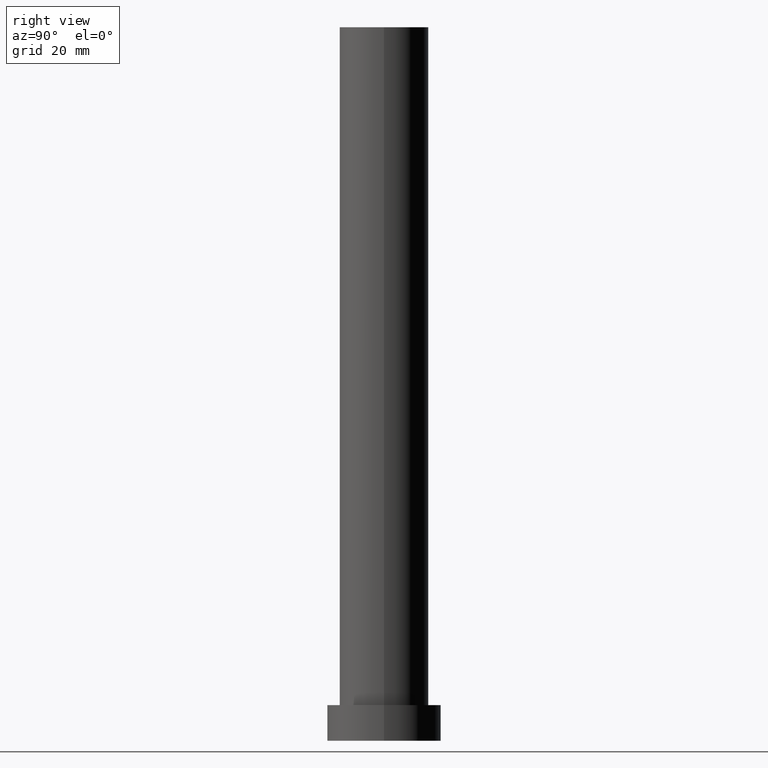
[diagram: clean part render]
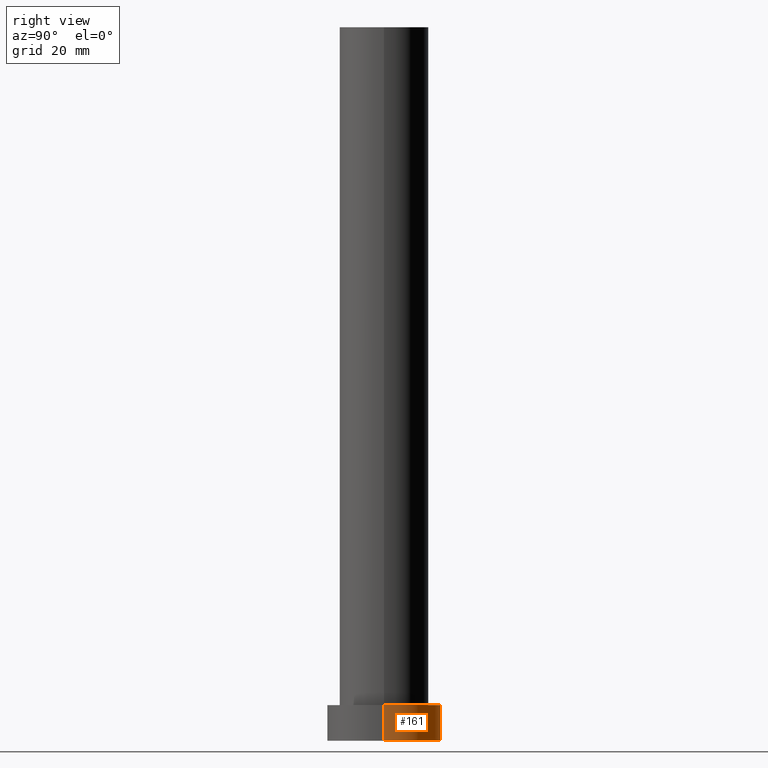
[diagram: same view with one face highlighted and labeled with its STEP entity id]
A machine part, right view. The second image highlights one B-rep face of the part: STEP entity #161.
In plain terms, the highlighted cylindrical surface (partial cylindrical patch) has radius 16 mm, axis along (-0, -0, -1).
Its self-contained STEP definition (entity closure, byte-faithful):
#15 = EDGE_CURVE ( 'NONE', #167, #133, #119, .T. ) ;
#18 = DIRECTION ( 'NONE',  ( 0.000000000000000000, 0.000000000000000000, 1.000000000000000000 ) ) ;
#19 = CARTESIAN_POINT ( 'NONE',  ( 16.00000000000000000, 1.959434878635765131E-15, 0.000000000000000000 ) ) ;
#37 = CARTESIAN_POINT ( 'NONE',  ( 0.000000000000000000, 0.000000000000000000, 10.00000000000000000 ) ) ;
#42 = CARTESIAN_POINT ( 'NONE',  ( 0.000000000000000000, 0.000000000000000000, 10.00000000000000000 ) ) ;
#46 = AXIS2_PLACEMENT_3D ( 'NONE', #42, #18, #149 ) ;
#47 = DIRECTION ( 'NONE',  ( -0.000000000000000000, -0.000000000000000000, -1.000000000000000000 ) ) ;
#56 = AXIS2_PLACEMENT_3D ( 'NONE', #227, #199, #136 ) ;
#58 = CARTESIAN_POINT ( 'NONE',  ( 16.00000000000000000, 1.959434878635765131E-15, 10.00000000000000000 ) ) ;
#62 = ORIENTED_EDGE ( 'NONE', *, *, #191, .F. ) ;
#65 = CARTESIAN_POINT ( 'NONE',  ( -16.00000000000000000, 0.000000000000000000, 10.00000000000000000 ) ) ;
#87 = DIRECTION ( 'NONE',  ( -0.000000000000000000, -0.000000000000000000, -1.000000000000000000 ) ) ;
#88 = AXIS2_PLACEMENT_3D ( 'NONE', #37, #47, #237 ) ;
#95 = CARTESIAN_POINT ( 'NONE',  ( 16.00000000000000000, 1.959434878635765131E-15, 10.00000000000000000 ) ) ;
#97 = CYLINDRICAL_SURFACE ( 'NONE', #88, 16.00000000000000000 ) ;
#99 = EDGE_CURVE ( 'NONE', #114, #167, #110, .T. ) ;
#110 = LINE ( 'NONE', #58, #249 ) ;
#111 = CARTESIAN_POINT ( 'NONE',  ( -16.00000000000000000, 0.000000000000000000, 10.00000000000000000 ) ) ;
#114 = VERTEX_POINT ( 'NONE', #95 ) ;
#119 = CIRCLE ( 'NONE', #56, 16.00000000000000000 ) ;
#133 = VERTEX_POINT ( 'NONE', #242 ) ;
#136 = DIRECTION ( 'NONE',  ( 1.000000000000000000, 0.000000000000000000, 0.000000000000000000 ) ) ;
#137 = DIRECTION ( 'NONE',  ( -0.000000000000000000, -0.000000000000000000, -1.000000000000000000 ) ) ;
#144 = CIRCLE ( 'NONE', #46, 16.00000000000000000 ) ;
#148 = VERTEX_POINT ( 'NONE', #111 ) ;
#149 = DIRECTION ( 'NONE',  ( 1.000000000000000000, 0.000000000000000000, 0.000000000000000000 ) ) ;
#161 = ADVANCED_FACE ( 'NONE', ( #243 ), #97, .T. ) ;
#167 = VERTEX_POINT ( 'NONE', #19 ) ;
#177 = ORIENTED_EDGE ( 'NONE', *, *, #15, .T. ) ;
#190 = ORIENTED_EDGE ( 'NONE', *, *, #99, .T. ) ;
#191 = EDGE_CURVE ( 'NONE', #114, #148, #144, .T. ) ;
#199 = DIRECTION ( 'NONE',  ( 0.000000000000000000, 0.000000000000000000, 1.000000000000000000 ) ) ;
#215 = VECTOR ( 'NONE', #137, 1000.000000000000000 ) ;
#223 = LINE ( 'NONE', #65, #215 ) ;
#227 = CARTESIAN_POINT ( 'NONE',  ( 0.000000000000000000, 0.000000000000000000, 0.000000000000000000 ) ) ;
#236 = EDGE_CURVE ( 'NONE', #148, #133, #223, .T. ) ;
#237 = DIRECTION ( 'NONE',  ( -1.000000000000000000, 0.000000000000000000, 0.000000000000000000 ) ) ;
#242 = CARTESIAN_POINT ( 'NONE',  ( -16.00000000000000000, 0.000000000000000000, 0.000000000000000000 ) ) ;
#243 = FACE_OUTER_BOUND ( 'NONE', #244, .T. ) ;
#244 = EDGE_LOOP ( 'NONE', ( #62, #190, #177, #246 ) ) ;
#246 = ORIENTED_EDGE ( 'NONE', *, *, #236, .F. ) ;
#249 = VECTOR ( 'NONE', #87, 1000.000000000000000 ) ;